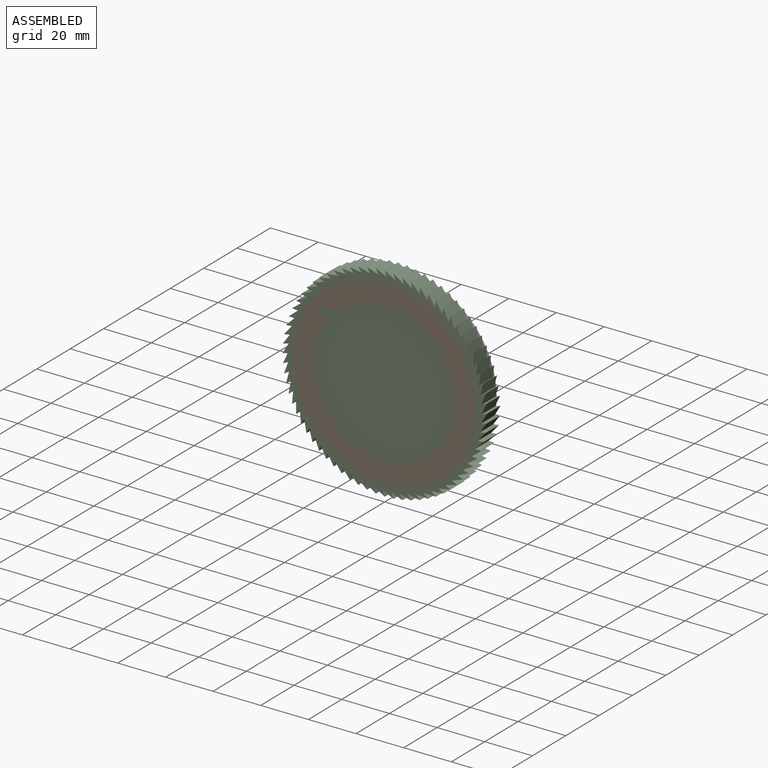
[diagram: assembled view]
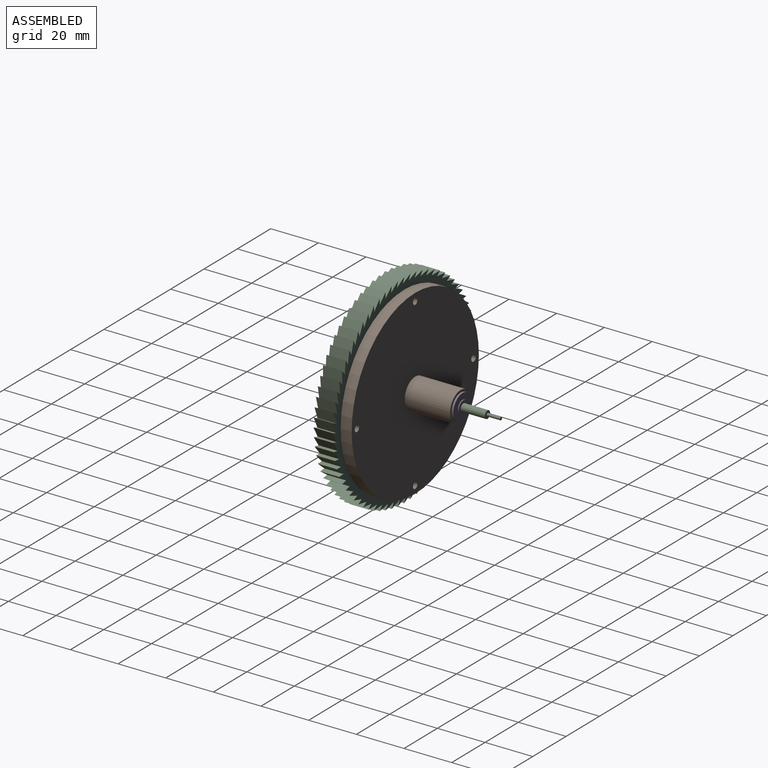
[diagram: assembled view, second angle]
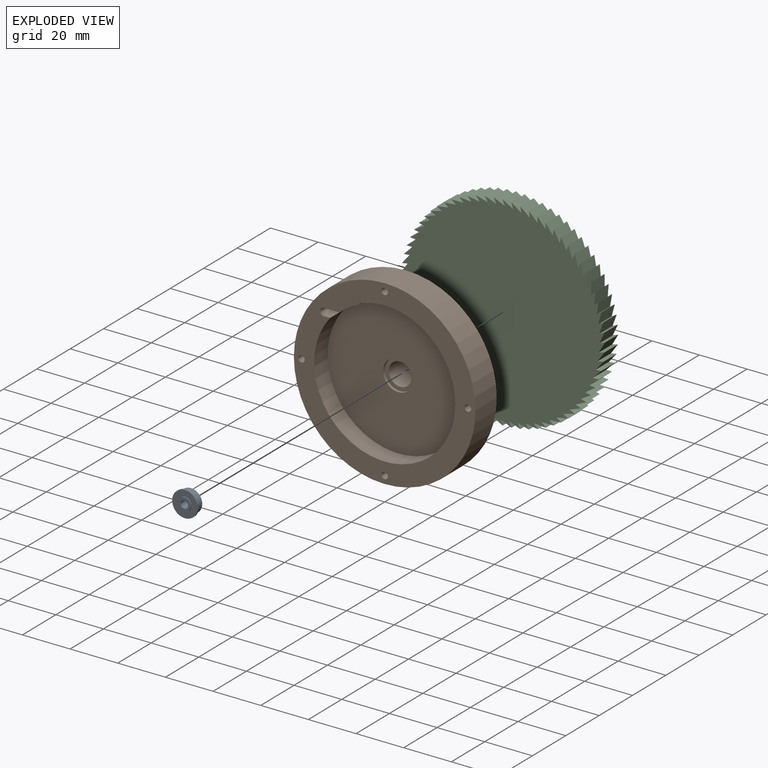
[diagram: exploded view]
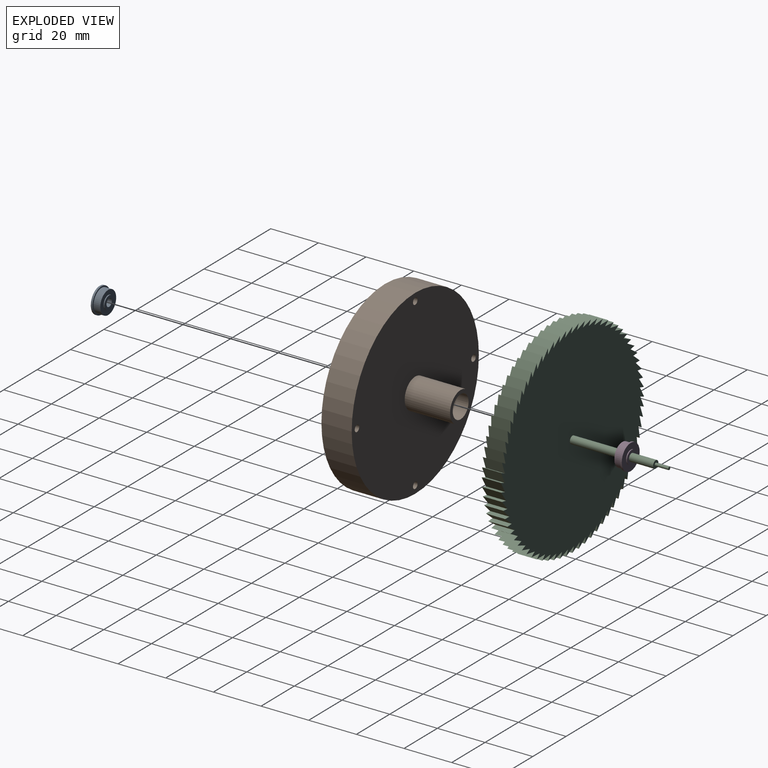
[diagram: exploded view, second angle]
ASSEMBLY  parts=4 mates=5
PART A: 10 faces, bbox 4.4x10.7x10.7 mm
  f0: cylinder r=1.59mm len=4.37mm, axis (1,0,0), area 43.6mm2, adj f1,f9
  f1: plane 5.59x5.59mm, normal (1,0,0), area 16.6mm2, adj f0,f2
  f2: cylinder r=2.79mm len=5.59mm, axis (1,0,0), area 7mm2, adj f1,f3
  f3: plane 10.72x10.72mm, normal (1,0,0), area 65.7mm2, adj f2,f4
  f4: cylinder r=5.36mm len=10.72mm, axis (1,0,0), area 25.7mm2, adj f3,f5
  f5: plane 10.72x10.72mm, normal (-1,0,0), area 19mm2, adj f4,f6
  f6: cylinder r=4.76mm len=9.53mm, axis (1,0,0), area 84.1mm2, adj f5,f7
  f7: plane 9.53x9.53mm, normal (-1,0,0), area 46.7mm2, adj f6,f8
  f8: cylinder r=2.79mm len=5.59mm, axis (1,0,0), area 7mm2, adj f7,f9
  f9: plane 5.59x5.59mm, normal (-1,0,0), area 16.6mm2, adj f0,f8
PART B: 24 faces, bbox 76.2x31.8x76.2 mm
  f0: cylinder r=4.76mm len=22.5mm, axis (0,-1,0), area 673.4mm2, adj f4,f22
  f1: cylinder r=29.62mm len=59.23mm, axis (0,-1,0), area 1375mm2, adj f2,f5,f13,f17,f21
  f2: plane 76.2x76.2mm, normal (0,-1,0), area 1770.6mm2, adj f1,f3,f8,f9,f10,f11,f15,f16
  f3: cylinder r=38.1mm len=76.2mm, axis (0,-1,0), area 3031.6mm2, adj f2,f7,f12
  f4: plane 12.7x12.7mm, normal (0,1,0), area 55.4mm2, adj f0,f6
  f5: plane 59.23x59.23mm, normal (0,-1,0), area 2623.8mm2, adj f1,f15,f18,f20,f21,f23
  f6: cylinder r=6.35mm len=19.05mm, axis (0,1,0), area 760.1mm2, adj f4,f7
  f7: plane 76.2x76.2mm, normal (0,1,0), area 4410.7mm2, adj f3,f6,f8,f9,f10,f11
  f8: cylinder r=1.35mm len=12.7mm, axis (0,-1,0), area 107.9mm2, adj f2,f7
  f9: cylinder r=1.35mm len=12.7mm, axis (0,-1,0), area 107.9mm2, adj f2,f7
  f10: cylinder r=1.35mm len=12.7mm, axis (0,-1,0), area 107.9mm2, adj f2,f7
  f11: cylinder r=1.35mm len=12.7mm, axis (0,-1,0), area 107.9mm2, adj f2,f7
  f12: cylinder r=1.35mm len=13.93mm, axis (-1,0,0), area 105.6mm2, adj f3,f14
  f13: cylinder r=0.36mm len=5.48mm, axis (-1,0,0), area 9.1mm2, adj f1,f14
  f14: cone r=0.36mm half-angle=45deg, axis (-1,0,0), area 7.6mm2, adj f12,f13
  f15: plane 8.18x6.19mm, normal (0,0,-1), area 50.6mm2, adj f2,f5,f16,f18,f19,f20
  f16: cylinder r=1.59mm len=8.18mm, axis (0,-1,0), area 40.8mm2, adj f2,f15,f17,f19
  f17: plane 8.18x2.46mm, normal (0,0,1), area 20.1mm2, adj f1,f2,f16,f18,f19
  f18: cylinder r=29.62mm len=3.18mm, axis (0,-1,0), area 0.3mm2, adj f5,f15,f17,f19
  f19: plane 7.06x3.18mm, normal (0,-1,0), area 16.3mm2, adj f15,f16,f17,f18
  f20: cylinder r=29.13mm len=8.38mm, axis (0,-1,0), area 80mm2, adj f2,f5,f15,f21
  f21: cylinder r=1.59mm len=8.1mm, axis (0,-1,0), area 10.6mm2, adj f1,f2,f5,f20
  f22: plane 12.7x12.7mm, normal (0,-1,0), area 55.4mm2, adj f0,f23
  f23: cylinder r=6.35mm len=12.7mm, axis (0,-1,0), area 45.6mm2, adj f5,f22
PART C: 150 faces, bbox 85.9x48.6x85.9 mm
  f0: plane 8.05x2.36mm, normal (-0.97,0,0.26), area 19.7mm2, adj f1,f143,f144,f145
  f1: plane 8.05x4.14mm, normal (0.57,0,-0.82), area 40.7mm2, adj f0,f2,f144,f145
  f2: plane 8.05x2.41mm, normal (-0.98,0,0.17), area 19.7mm2, adj f1,f3,f144,f145
  f3: plane 8.05x3.87mm, normal (0.64,0,-0.77), area 40.7mm2, adj f2,f4,f144,f145
  f4: plane 8.05x2.44mm, normal (-1,0,0.09), area 19.7mm2, adj f3,f5,f144,f145
  f5: plane 8.05x3.57mm, normal (0.71,0,-0.71), area 40.7mm2, adj f4,f6,f144,f145
  f6: plane 8.05x2.45mm, normal (-1,0,0), area 19.7mm2, adj f5,f7,f144,f145
  f7: plane 8.05x3.87mm, normal (0.77,0,-0.64), area 40.7mm2, adj f6,f8,f144,f145
  f8: plane 8.05x2.44mm, normal (-1,0,-0.09), area 19.7mm2, adj f7,f9,f144,f145
  f9: plane 8.05x4.14mm, normal (0.82,0,-0.57), area 40.7mm2, adj f8,f10,f144,f145
  f10: plane 8.05x2.41mm, normal (-0.98,0,-0.17), area 19.7mm2, adj f9,f11,f144,f145
  f11: plane 8.05x4.37mm, normal (0.87,0,-0.5), area 40.7mm2, adj f10,f12,f144,f145
  f12: plane 8.05x2.36mm, normal (-0.97,0,-0.26), area 19.7mm2, adj f11,f13,f144,f145
  f13: plane 8.05x4.58mm, normal (0.91,0,-0.42), area 40.7mm2, adj f12,f14,f144,f145
  f14: plane 8.05x2.3mm, normal (-0.94,0,-0.34), area 19.7mm2, adj f13,f15,f144,f145
  f15: plane 8.05x4.75mm, normal (0.94,0,-0.34), area 40.7mm2, adj f14,f16,f144,f145
  f16: plane 8.05x2.22mm, normal (-0.91,0,-0.42), area 19.7mm2, adj f15,f17,f144,f145
  f17: plane 8.05x4.88mm, normal (0.97,0,-0.26), area 40.7mm2, adj f16,f18,f144,f145
  f18: plane 8.05x2.12mm, normal (-0.87,0,-0.5), area 19.7mm2, adj f17,f19,f144,f145
  f19: plane 8.05x4.97mm, normal (0.98,0,-0.17), area 40.7mm2, adj f18,f20,f144,f145
  f20: plane 8.05x2mm, normal (-0.82,0,-0.57), area 19.7mm2, adj f19,f21,f144,f145
  f21: plane 8.05x5.03mm, normal (1,0,-0.09), area 40.7mm2, adj f20,f22,f144,f145
  f22: plane 8.05x1.87mm, normal (-0.77,0,-0.64), area 19.7mm2, adj f21,f23,f144,f145
  f23: plane 8.05x5.05mm, normal (1,0,0), area 40.7mm2, adj f22,f24,f144,f145
  f24: plane 8.05x1.73mm, normal (-0.71,0,-0.71), area 19.7mm2, adj f23,f25,f144,f145
  f25: plane 8.05x5.03mm, normal (1,0,0.09), area 40.7mm2, adj f24,f26,f144,f145
  f26: plane 8.05x1.87mm, normal (-0.64,0,-0.77), area 19.7mm2, adj f25,f27,f144,f145
  f27: plane 8.05x4.97mm, normal (0.98,0,0.17), area 40.7mm2, adj f26,f28,f144,f145
  f28: plane 8.05x2mm, normal (-0.57,0,-0.82), area 19.7mm2, adj f27,f29,f144,f145
  f29: plane 8.05x4.88mm, normal (0.97,0,0.26), area 40.7mm2, adj f28,f30,f144,f145
  f30: plane 8.05x2.12mm, normal (-0.5,0,-0.87), area 19.7mm2, adj f29,f31,f144,f145
  f31: plane 8.05x4.75mm, normal (0.94,0,0.34), area 40.7mm2, adj f30,f32,f144,f145
  f32: plane 8.05x2.22mm, normal (-0.42,0,-0.91), area 19.7mm2, adj f31,f33,f144,f145
  f33: plane 8.05x4.58mm, normal (0.91,0,0.42), area 40.7mm2, adj f32,f34,f144,f145
  f34: plane 8.05x2.3mm, normal (-0.34,0,-0.94), area 19.7mm2, adj f33,f35,f144,f145
  f35: plane 8.05x4.37mm, normal (0.87,0,0.5), area 40.7mm2, adj f34,f36,f144,f145
  f36: plane 8.05x2.36mm, normal (-0.26,0,-0.97), area 19.7mm2, adj f35,f37,f144,f145
  f37: plane 8.05x4.14mm, normal (0.82,0,0.57), area 40.7mm2, adj f36,f38,f144,f145
  f38: plane 8.05x2.41mm, normal (-0.17,0,-0.98), area 19.7mm2, adj f37,f39,f144,f145
  f39: plane 8.05x3.87mm, normal (0.77,0,0.64), area 40.7mm2, adj f38,f40,f144,f145
  f40: plane 8.05x2.44mm, normal (-0.09,0,-1), area 19.7mm2, adj f39,f41,f144,f145
  f41: plane 8.05x3.57mm, normal (0.71,0,0.71), area 40.7mm2, adj f40,f42,f144,f145
  f42: plane 8.05x2.45mm, normal (0,0,-1), area 19.7mm2, adj f41,f43,f144,f145
  f43: plane 8.05x3.87mm, normal (0.64,0,0.77), area 40.7mm2, adj f42,f44,f144,f145
  f44: plane 8.05x2.44mm, normal (0.09,0,-1), area 19.7mm2, adj f43,f45,f144,f145
  f45: plane 8.05x4.14mm, normal (0.57,0,0.82), area 40.7mm2, adj f44,f46,f144,f145
  f46: plane 8.05x2.41mm, normal (0.17,0,-0.98), area 19.7mm2, adj f45,f47,f144,f145
  f47: plane 8.05x4.37mm, normal (0.5,0,0.87), area 40.7mm2, adj f46,f48,f144,f145
  f48: plane 8.05x2.36mm, normal (0.26,0,-0.97), area 19.7mm2, adj f47,f49,f144,f145
  f49: plane 8.05x4.58mm, normal (0.42,0,0.91), area 40.7mm2, adj f48,f50,f144,f145
  f50: plane 8.05x2.3mm, normal (0.34,0,-0.94), area 19.7mm2, adj f49,f51,f144,f145
  f51: plane 8.05x4.75mm, normal (0.34,0,0.94), area 40.7mm2, adj f50,f52,f144,f145
  f52: plane 8.05x2.22mm, normal (0.42,0,-0.91), area 19.7mm2, adj f51,f53,f144,f145
  f53: plane 8.05x4.88mm, normal (0.26,0,0.97), area 40.7mm2, adj f52,f54,f144,f145
  f54: plane 8.05x2.12mm, normal (0.5,0,-0.87), area 19.7mm2, adj f53,f55,f144,f145
  f55: plane 8.05x4.97mm, normal (0.17,0,0.98), area 40.7mm2, adj f54,f56,f144,f145
  f56: plane 8.05x2mm, normal (0.57,0,-0.82), area 19.7mm2, adj f55,f57,f144,f145
  f57: plane 8.05x5.03mm, normal (0.09,0,1), area 40.7mm2, adj f56,f58,f144,f145
  f58: plane 8.05x1.87mm, normal (0.64,0,-0.77), area 19.7mm2, adj f57,f59,f144,f145
  f59: plane 8.05x5.05mm, normal (0,0,1), area 40.7mm2, adj f58,f60,f144,f145
  f60: plane 8.05x1.73mm, normal (0.71,0,-0.71), area 19.7mm2, adj f59,f61,f144,f145
  f61: plane 8.05x5.03mm, normal (-0.09,0,1), area 40.7mm2, adj f60,f62,f144,f145
  f62: plane 8.05x1.87mm, normal (0.77,0,-0.64), area 19.7mm2, adj f61,f63,f144,f145
  f63: plane 8.05x4.97mm, normal (-0.17,0,0.98), area 40.7mm2, adj f62,f64,f144,f145
  f64: plane 8.05x2mm, normal (0.82,0,-0.57), area 19.7mm2, adj f63,f65,f144,f145
  f65: plane 8.05x4.88mm, normal (-0.26,0,0.97), area 40.7mm2, adj f64,f66,f144,f145
  f66: plane 8.05x2.12mm, normal (0.87,0,-0.5), area 19.7mm2, adj f65,f67,f144,f145
  f67: plane 8.05x4.75mm, normal (-0.34,0,0.94), area 40.7mm2, adj f66,f68,f144,f145
  f68: plane 8.05x2.22mm, normal (0.91,0,-0.42), area 19.7mm2, adj f67,f69,f144,f145
  f69: plane 8.05x4.58mm, normal (-0.42,0,0.91), area 40.7mm2, adj f68,f70,f144,f145
  f70: plane 8.05x2.3mm, normal (0.94,0,-0.34), area 19.7mm2, adj f69,f71,f144,f145
  f71: plane 8.05x4.37mm, normal (-0.5,0,0.87), area 40.7mm2, adj f70,f72,f144,f145
  f72: plane 8.05x2.36mm, normal (0.97,0,-0.26), area 19.7mm2, adj f71,f73,f144,f145
  f73: plane 8.05x4.14mm, normal (-0.57,0,0.82), area 40.7mm2, adj f72,f74,f144,f145
  f74: plane 8.05x2.41mm, normal (0.98,0,-0.17), area 19.7mm2, adj f73,f75,f144,f145
  f75: plane 8.05x3.87mm, normal (-0.64,0,0.77), area 40.7mm2, adj f74,f76,f144,f145
  f76: plane 8.05x2.44mm, normal (1,0,-0.09), area 19.7mm2, adj f75,f77,f144,f145
  f77: plane 8.05x3.57mm, normal (-0.71,0,0.71), area 40.7mm2, adj f76,f78,f144,f145
  f78: plane 8.05x2.45mm, normal (1,0,0), area 19.7mm2, adj f77,f79,f144,f145
  f79: plane 8.05x3.87mm, normal (-0.77,0,0.64), area 40.7mm2, adj f78,f80,f144,f145
  f80: plane 8.05x2.44mm, normal (1,0,0.09), area 19.7mm2, adj f79,f81,f144,f145
  f81: plane 8.05x4.14mm, normal (-0.82,0,0.57), area 40.7mm2, adj f80,f82,f144,f145
  f82: plane 8.05x2.41mm, normal (0.98,0,0.17), area 19.7mm2, adj f81,f83,f144,f145
  f83: plane 8.05x4.37mm, normal (-0.87,0,0.5), area 40.7mm2, adj f82,f84,f144,f145
  f84: plane 8.05x2.36mm, normal (0.97,0,0.26), area 19.7mm2, adj f83,f85,f144,f145
  f85: plane 8.05x4.58mm, normal (-0.91,0,0.42), area 40.7mm2, adj f84,f86,f144,f145
  f86: plane 8.05x2.3mm, normal (0.94,0,0.34), area 19.7mm2, adj f85,f87,f144,f145
  f87: plane 8.05x4.75mm, normal (-0.94,0,0.34), area 40.7mm2, adj f86,f88,f144,f145
  f88: plane 8.05x2.22mm, normal (0.91,0,0.42), area 19.7mm2, adj f87,f89,f144,f145
  f89: plane 8.05x4.88mm, normal (-0.97,0,0.26), area 40.7mm2, adj f88,f90,f144,f145
  f90: plane 8.05x2.12mm, normal (0.87,0,0.5), area 19.7mm2, adj f89,f91,f144,f145
  f91: plane 8.05x4.97mm, normal (-0.98,0,0.17), area 40.7mm2, adj f90,f92,f144,f145
  f92: plane 8.05x2mm, normal (0.82,0,0.57), area 19.7mm2, adj f91,f93,f144,f145
  f93: plane 8.05x5.03mm, normal (-1,0,0.09), area 40.7mm2, adj f92,f94,f144,f145
  f94: plane 8.05x1.87mm, normal (0.77,0,0.64), area 19.7mm2, adj f93,f95,f144,f145
  f95: plane 8.05x5.05mm, normal (-1,0,0), area 40.7mm2, adj f94,f96,f144,f145
  f96: plane 8.05x1.73mm, normal (0.71,0,0.71), area 19.7mm2, adj f95,f97,f144,f145
  f97: plane 8.05x5.03mm, normal (-1,0,-0.09), area 40.7mm2, adj f96,f98,f144,f145
  f98: plane 8.05x1.87mm, normal (0.64,0,0.77), area 19.7mm2, adj f97,f99,f144,f145
  f99: plane 8.05x4.97mm, normal (-0.98,0,-0.17), area 40.7mm2, adj f98,f100,f144,f145
  f100: plane 8.05x2mm, normal (0.57,0,0.82), area 19.7mm2, adj f99,f101,f144,f145
  f101: plane 8.05x4.88mm, normal (-0.97,0,-0.26), area 40.7mm2, adj f100,f102,f144,f145
  f102: plane 8.05x2.12mm, normal (0.5,0,0.87), area 19.7mm2, adj f101,f103,f144,f145
  f103: plane 8.05x4.75mm, normal (-0.94,0,-0.34), area 40.7mm2, adj f102,f104,f144,f145
  f104: plane 8.05x2.22mm, normal (0.42,0,0.91), area 19.7mm2, adj f103,f105,f144,f145
  f105: plane 8.05x4.58mm, normal (-0.91,0,-0.42), area 40.7mm2, adj f104,f106,f144,f145
  f106: plane 8.05x2.3mm, normal (0.34,0,0.94), area 19.7mm2, adj f105,f107,f144,f145
  f107: plane 8.05x4.37mm, normal (-0.87,0,-0.5), area 40.7mm2, adj f106,f108,f144,f145
  f108: plane 8.05x2.36mm, normal (0.26,0,0.97), area 19.7mm2, adj f107,f109,f144,f145
  f109: plane 8.05x4.14mm, normal (-0.82,0,-0.57), area 40.7mm2, adj f108,f110,f144,f145
  f110: plane 8.05x2.41mm, normal (0.17,0,0.98), area 19.7mm2, adj f109,f111,f144,f145
  f111: plane 8.05x3.87mm, normal (-0.77,0,-0.64), area 40.7mm2, adj f110,f112,f144,f145
  f112: plane 8.05x2.44mm, normal (0.09,0,1), area 19.7mm2, adj f111,f113,f144,f145
  f113: plane 8.05x3.57mm, normal (-0.71,0,-0.71), area 40.7mm2, adj f112,f114,f144,f145
  f114: plane 8.05x2.45mm, normal (0,0,1), area 19.7mm2, adj f113,f115,f144,f145
  f115: plane 8.05x3.87mm, normal (-0.64,0,-0.77), area 40.7mm2, adj f114,f116,f144,f145
  f116: plane 8.05x2.44mm, normal (-0.09,0,1), area 19.7mm2, adj f115,f117,f144,f145
  f117: plane 8.05x4.14mm, normal (-0.57,0,-0.82), area 40.7mm2, adj f116,f118,f144,f145
  f118: plane 8.05x2.41mm, normal (-0.17,0,0.98), area 19.7mm2, adj f117,f119,f144,f145
  f119: plane 8.05x4.37mm, normal (-0.5,0,-0.87), area 40.7mm2, adj f118,f120,f144,f145
  f120: plane 8.05x2.36mm, normal (-0.26,0,0.97), area 19.7mm2, adj f119,f121,f144,f145
  f121: plane 8.05x4.58mm, normal (-0.42,0,-0.91), area 40.7mm2, adj f120,f122,f144,f145
  f122: plane 8.05x2.3mm, normal (-0.34,0,0.94), area 19.7mm2, adj f121,f123,f144,f145
  f123: plane 8.05x4.75mm, normal (-0.34,0,-0.94), area 40.7mm2, adj f122,f124,f144,f145
  f124: plane 8.05x2.22mm, normal (-0.42,0,0.91), area 19.7mm2, adj f123,f125,f144,f145
  f125: plane 8.05x4.88mm, normal (-0.26,0,-0.97), area 40.7mm2, adj f124,f126,f144,f145
  f126: plane 8.05x2.12mm, normal (-0.5,0,0.87), area 19.7mm2, adj f125,f127,f144,f145
  f127: plane 8.05x4.97mm, normal (-0.17,0,-0.98), area 40.7mm2, adj f126,f128,f144,f145
  f128: plane 8.05x2mm, normal (-0.57,0,0.82), area 19.7mm2, adj f127,f129,f144,f145
  f129: plane 8.05x5.03mm, normal (-0.09,0,-1), area 40.7mm2, adj f128,f130,f144,f145
  f130: plane 8.05x1.87mm, normal (-0.64,0,0.77), area 19.7mm2, adj f129,f131,f144,f145
  f131: plane 8.05x5.05mm, normal (0,0,-1), area 40.7mm2, adj f130,f132,f144,f145
  f132: plane 8.05x1.73mm, normal (-0.71,0,0.71), area 19.7mm2, adj f131,f133,f144,f145
  f133: plane 8.05x5.03mm, normal (0.09,0,-1), area 40.7mm2, adj f132,f134,f144,f145
  f134: plane 8.05x1.87mm, normal (-0.77,0,0.64), area 19.7mm2, adj f133,f135,f144,f145
  f135: plane 8.05x4.97mm, normal (0.17,0,-0.98), area 40.7mm2, adj f134,f136,f144,f145
  f136: plane 8.05x2mm, normal (-0.82,0,0.57), area 19.7mm2, adj f135,f137,f144,f145
  f137: plane 8.05x4.88mm, normal (0.26,0,-0.97), area 40.7mm2, adj f136,f138,f144,f145
  f138: plane 8.05x2.12mm, normal (-0.87,0,0.5), area 19.7mm2, adj f137,f139,f144,f145
  f139: plane 8.05x4.75mm, normal (0.34,0,-0.94), area 40.7mm2, adj f138,f140,f144,f145
  f140: plane 8.05x2.22mm, normal (-0.91,0,0.42), area 19.7mm2, adj f139,f141,f144,f145
  f141: plane 8.05x4.58mm, normal (0.42,0,-0.91), area 40.7mm2, adj f140,f142,f144,f145
  f142: plane 8.05x2.3mm, normal (-0.94,0,0.34), area 19.7mm2, adj f141,f143,f144,f145
  f143: plane 8.05x4.37mm, normal (0.5,0,-0.87), area 40.7mm2, adj f0,f142,f144,f145
  f144: plane 85.85x85.85mm, normal (0,-1,0), area 5459.2mm2, adj f0,f1,f2,f3,f4,f5,f6,f7
  f145: plane 85.85x85.85mm, normal (0,1,0), area 5467.1mm2, adj f0,f1,f2,f3,f4,f5,f6,f7
  f146: cylinder r=1.59mm len=34.93mm, axis (0,1,0), area 348.4mm2, adj f144,f147
  f147: plane 3.18x3.18mm, normal (0,-1,0), area 6.7mm2, adj f146,f148
  f148: cylinder r=0.64mm len=5.66mm, axis (0,1,0), area 22.6mm2, adj f147,f149
  f149: plane 1.27x1.27mm, normal (0,-1,0), area 1.3mm2, adj f148
PART D: same geometry as A
PLACE A rot(axis=(0,0,-1),90deg) t=(0,12.45,0)mm
PLACE B rot(axis=(0.25,0.12,0.96),0deg) t=(0,0,0)mm
PLACE C rot(axis=(-0.71,0,0.71),180deg) t=(0,0.03,0)mm
PLACE D rot(axis=(-0.71,-0.71,0),180deg) t=(0,28.54,0)mm
MATE fastened B.f0 <-> D.f0  axis (0,1,0) through (0,31.75,0)mm
MATE ball B.f0 <-> D.f0  axis (0,1,0) through (0,31.75,0)mm
MATE ball B.f0 <-> A.f0  axis (0,-1,0) through (0,9.25,0)mm
MATE fastened B.f0 <-> A.f0  axis (0,-1,0) through (0,9.25,0)mm
MATE fastened C.f146 <-> A.f0  axis (0,1,0) through (0,8.09,0)mm
